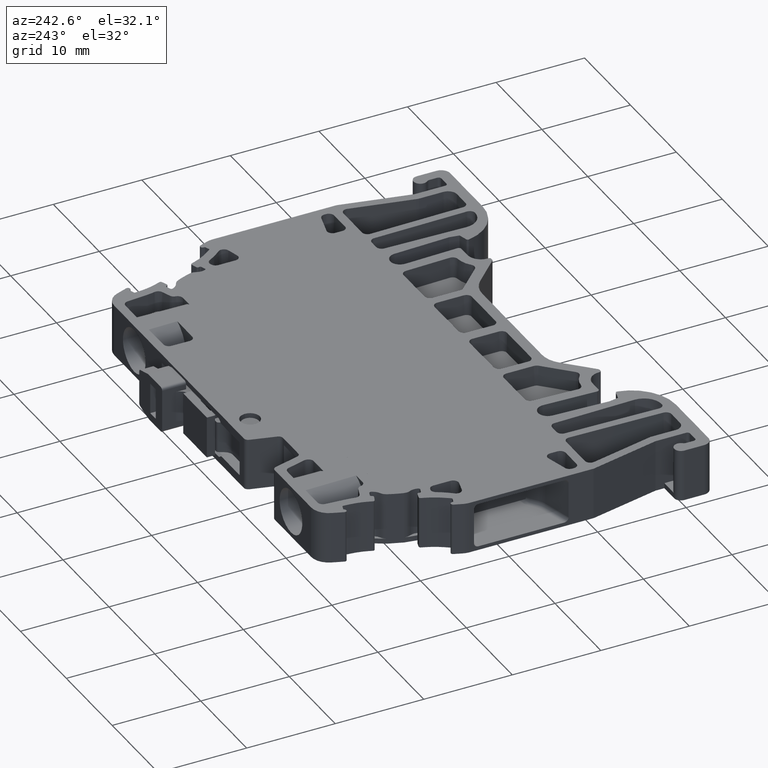
[diagram: clean part render]
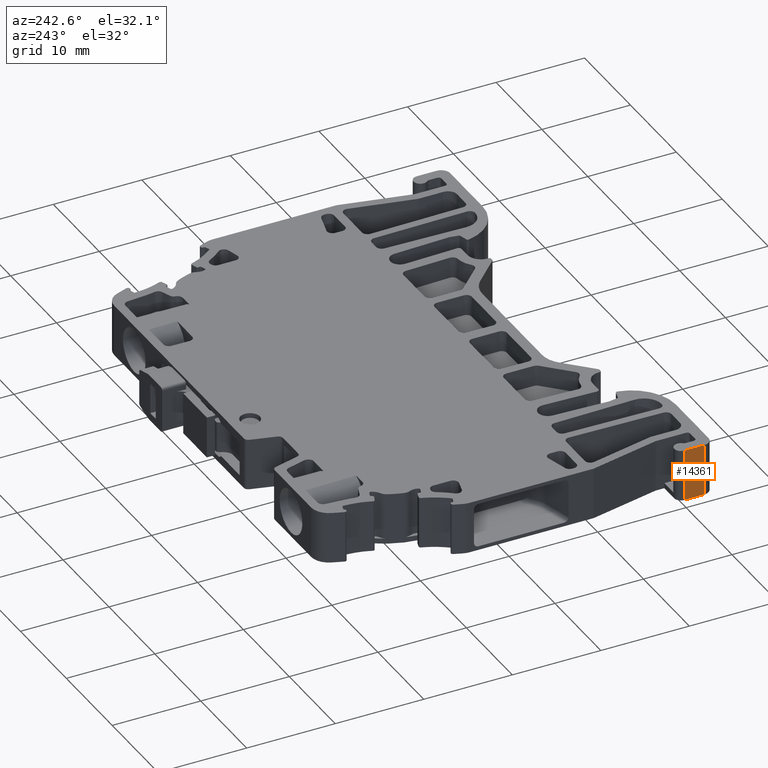
[diagram: same view with one face highlighted and labeled with its STEP entity id]
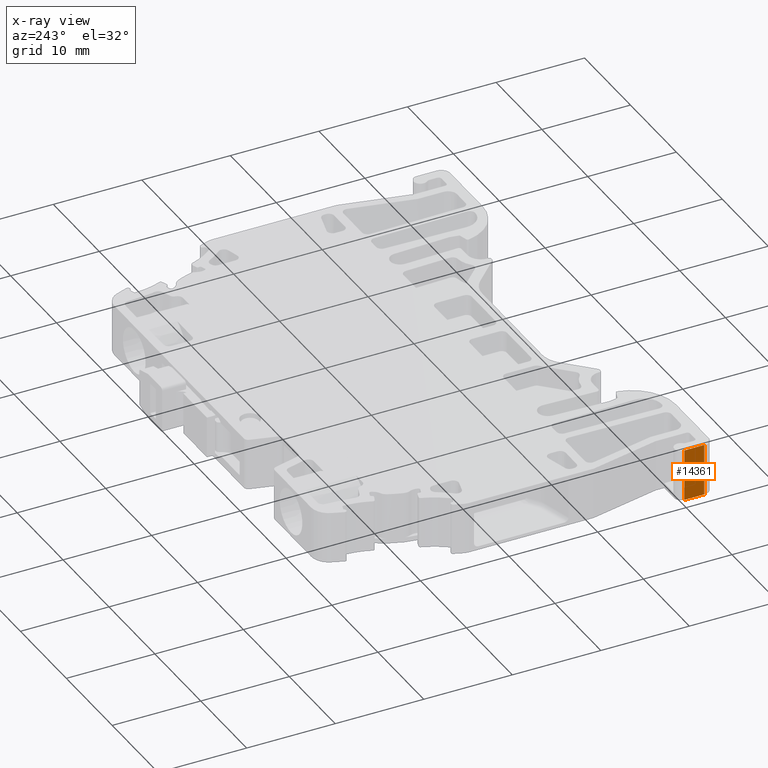
[diagram: x-ray of the same camera — body ghosted, the highlighted face saturated]
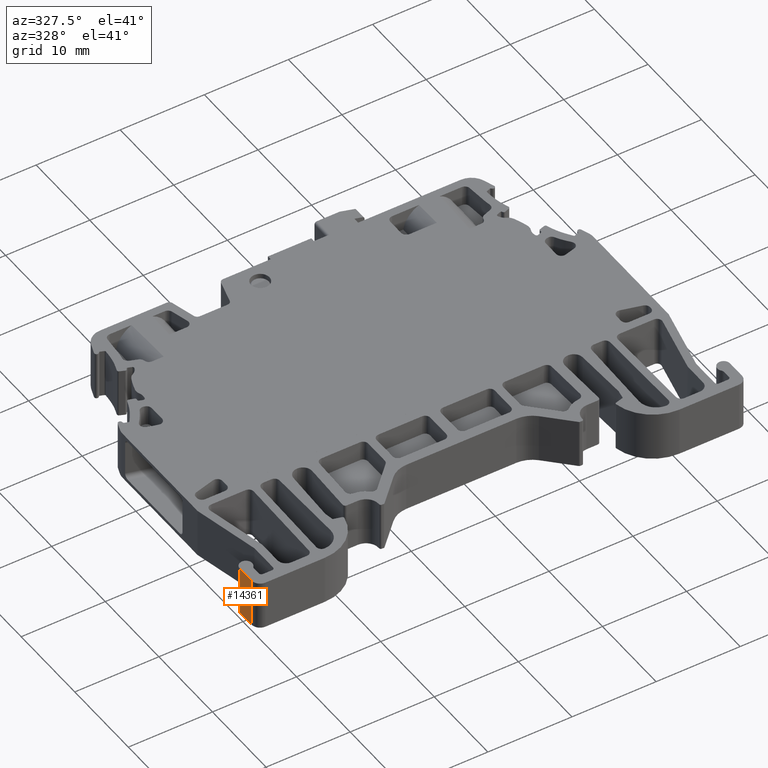
[diagram: same view with one face highlighted and labeled with its STEP entity id]
A machine part, auxiliary view. The second image highlights one B-rep face of the part: STEP entity #14361.
The next image is the same camera in x-ray: the body ghosted, the highlighted face saturated — about 0% of this face is hidden behind the body in this view.
A second angle (auxiliary view) of the same face is appended — the face is thin or edge-on in the first view.
In plain terms, the highlighted planar face has unit normal (-1, 0, 0).
Its self-contained STEP definition (entity closure, byte-faithful):
#5735 = CARTESIAN_POINT ( 'NONE',  ( 989.7935411055890400, 928.0662384247859800, -5.850000000000000500 ) ) ;
#5739 = LINE ( 'NONE', #5735, #34948 ) ;
#5755 = LINE ( 'NONE', #5777, #34977 ) ;
#5756 = DIRECTION ( 'NONE',  ( 0.0000000000000000000, -1.000000000000000000, 0.0000000000000000000 ) ) ;
#5777 = CARTESIAN_POINT ( 'NONE',  ( 989.7935411055890400, 928.0662384247859800, 0.0000000000000000000 ) ) ;
#5783 = DIRECTION ( 'NONE',  ( 0.0000000000000000000, 0.0000000000000000000, 1.000000000000000000 ) ) ;
#10552 = EDGE_LOOP ( 'NONE', ( #13915, #13867, #13866, #13808 ) ) ;
#11226 = EDGE_CURVE ( 'NONE', #18142, #12493, #41141, .T. ) ;
#11261 = EDGE_CURVE ( 'NONE', #12493, #12511, #5755, .T. ) ;
#11263 = EDGE_CURVE ( 'NONE', #18118, #12511, #5739, .T. ) ;
#12493 = VERTEX_POINT ( 'NONE', #41940 ) ;
#12511 = VERTEX_POINT ( 'NONE', #41870 ) ;
#13808 = ORIENTED_EDGE ( 'NONE', *, *, #11263, .T. ) ;
#13866 = ORIENTED_EDGE ( 'NONE', *, *, #14724, .T. ) ;
#13867 = ORIENTED_EDGE ( 'NONE', *, *, #11226, .F. ) ;
#13915 = ORIENTED_EDGE ( 'NONE', *, *, #11261, .F. ) ;
#14361 = ADVANCED_FACE ( 'NONE', ( #35314 ), #35311, .T. ) ;
#14724 = EDGE_CURVE ( 'NONE', #18142, #18118, #25887, .T. ) ;
#18118 = VERTEX_POINT ( 'NONE', #21440 ) ;
#18142 = VERTEX_POINT ( 'NONE', #21404 ) ;
#21404 = CARTESIAN_POINT ( 'NONE',  ( 989.7935411055890400, 930.3123487548689400, -5.850000000000000500 ) ) ;
#21440 = CARTESIAN_POINT ( 'NONE',  ( 989.7935411055890400, 928.0662384247859800, -5.850000000000000500 ) ) ;
#25887 = LINE ( 'NONE', #25892, #26567 ) ;
#25888 = DIRECTION ( 'NONE',  ( 0.0000000000000000000, -1.000000000000000000, 0.0000000000000000000 ) ) ;
#25892 = CARTESIAN_POINT ( 'NONE',  ( 989.7935411055890400, 928.0662384247859800, -5.850000000000000500 ) ) ;
#26567 = VECTOR ( 'NONE', #25888, 1000.000000000000000 ) ;
#32837 = AXIS2_PLACEMENT_3D ( 'NONE', #35317, #35318, #35345 ) ;
#34902 = VECTOR ( 'NONE', #39007, 1000.000000000000000 ) ;
#34948 = VECTOR ( 'NONE', #5783, 1000.000000000000000 ) ;
#34977 = VECTOR ( 'NONE', #5756, 1000.000000000000000 ) ;
#35311 = PLANE ( 'NONE',  #32837 ) ;
#35314 = FACE_OUTER_BOUND ( 'NONE', #10552, .T. ) ;
#35317 = CARTESIAN_POINT ( 'NONE',  ( 989.7935411055890400, 928.0662384247859800, -5.850000000000000500 ) ) ;
#35318 = DIRECTION ( 'NONE',  ( -1.000000000000000000, 0.0000000000000000000, 0.0000000000000000000 ) ) ;
#35345 = DIRECTION ( 'NONE',  ( 0.0000000000000000000, 0.0000000000000000000, 1.000000000000000000 ) ) ;
#38997 = CARTESIAN_POINT ( 'NONE',  ( 989.7935411055890400, 930.3123487548689400, -5.850000000000000500 ) ) ;
#39007 = DIRECTION ( 'NONE',  ( 0.0000000000000000000, 0.0000000000000000000, 1.000000000000000000 ) ) ;
#41141 = LINE ( 'NONE', #38997, #34902 ) ;
#41870 = CARTESIAN_POINT ( 'NONE',  ( 989.7935411055890400, 928.0662384247859800, 0.0000000000000000000 ) ) ;
#41940 = CARTESIAN_POINT ( 'NONE',  ( 989.7935411055890400, 930.3123487548689400, 0.0000000000000000000 ) ) ;